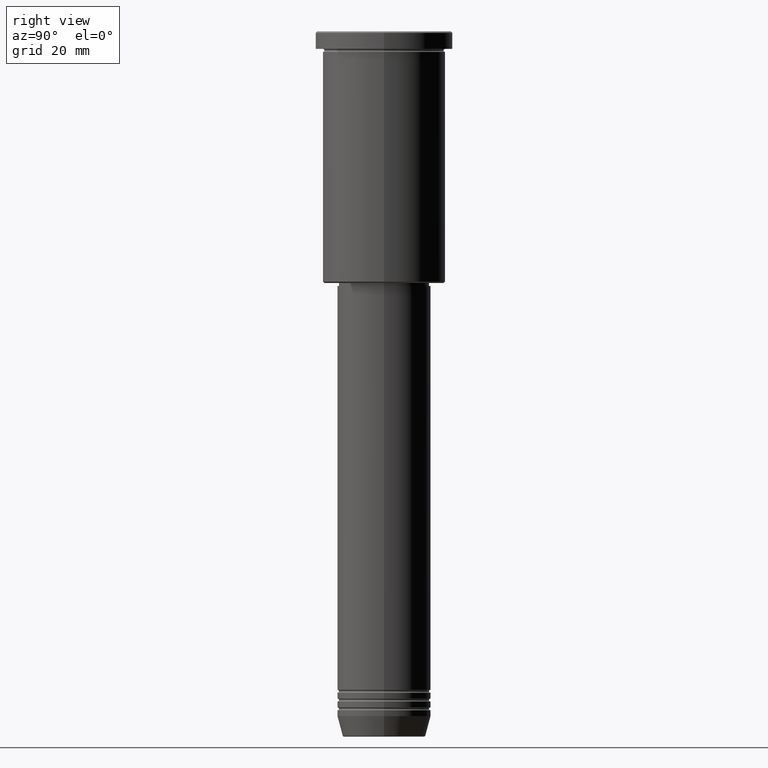
[diagram: clean part render]
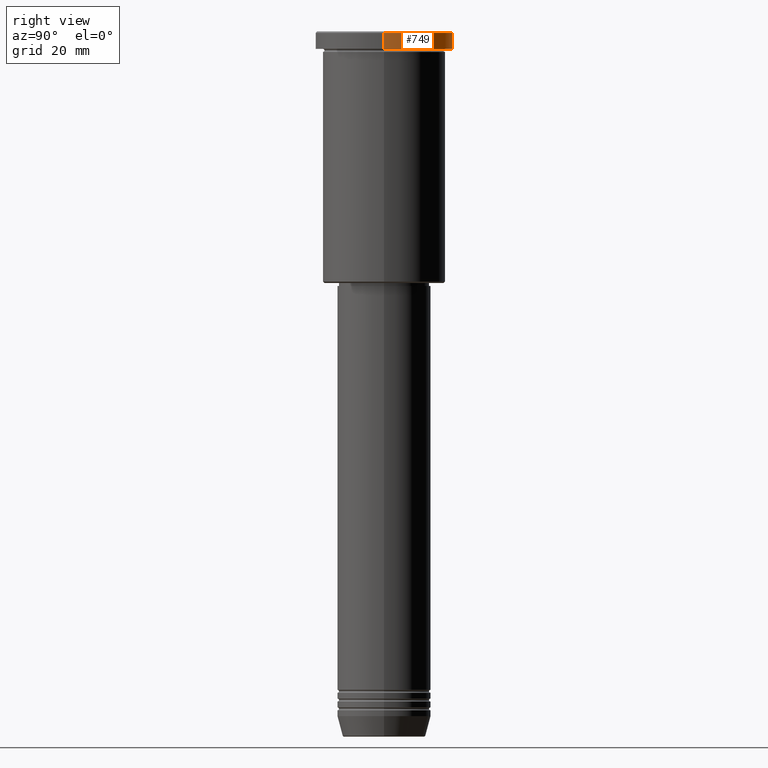
[diagram: same view with one face highlighted and labeled with its STEP entity id]
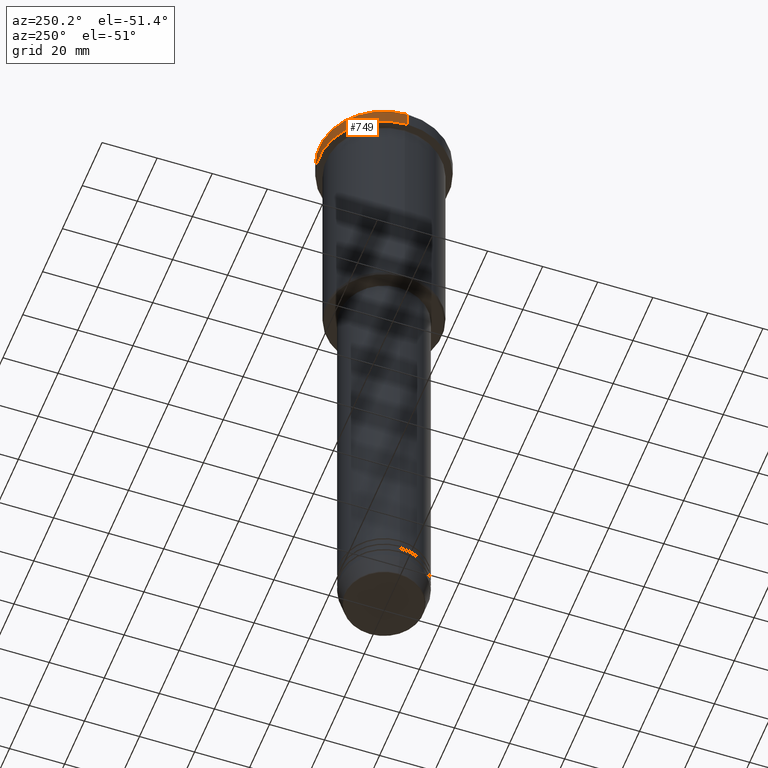
[diagram: same view with one face highlighted and labeled with its STEP entity id]
A machine part, right view. The second image highlights one B-rep face of the part: STEP entity #749.
A second angle (auxiliary view) of the same face is appended — the face is thin or edge-on in the first view.
In plain terms, the highlighted cylindrical surface (partial cylindrical patch) has radius 23.5 mm, axis along (-0, -0, 1).
Its self-contained STEP definition (entity closure, byte-faithful):
#79 = AXIS2_PLACEMENT_3D ( 'NONE', #821, #360, #817 ) ;
#81 = VERTEX_POINT ( 'NONE', #696 ) ;
#87 = EDGE_CURVE ( 'NONE', #1023, #550, #530, .T. ) ;
#91 = DIRECTION ( 'NONE',  ( 0.000000000000000000, 0.000000000000000000, -1.000000000000000000 ) ) ;
#93 = EDGE_CURVE ( 'NONE', #661, #81, #1053, .T. ) ;
#108 = ORIENTED_EDGE ( 'NONE', *, *, #87, .T. ) ;
#135 = CARTESIAN_POINT ( 'NONE',  ( -23.50000000000000000, 2.877919977996280320E-15, -5.999999999999994671 ) ) ;
#160 = DIRECTION ( 'NONE',  ( -0.000000000000000000, -0.000000000000000000, 1.000000000000000000 ) ) ;
#176 = DIRECTION ( 'NONE',  ( 1.000000000000000000, 0.000000000000000000, 0.000000000000000000 ) ) ;
#198 = ORIENTED_EDGE ( 'NONE', *, *, #93, .F. ) ;
#200 = EDGE_LOOP ( 'NONE', ( #389, #108, #940, #198 ) ) ;
#249 = VECTOR ( 'NONE', #690, 1000.000000000000000 ) ;
#251 = DIRECTION ( 'NONE',  ( 1.000000000000000000, 0.000000000000000000, 0.000000000000000000 ) ) ;
#260 = CARTESIAN_POINT ( 'NONE',  ( 0.000000000000000000, 0.000000000000000000, -0.5000000000000281997 ) ) ;
#360 = DIRECTION ( 'NONE',  ( -0.000000000000000000, -0.000000000000000000, 1.000000000000000000 ) ) ;
#389 = ORIENTED_EDGE ( 'NONE', *, *, #892, .T. ) ;
#467 = EDGE_CURVE ( 'NONE', #550, #81, #797, .T. ) ;
#530 = LINE ( 'NONE', #888, #249 ) ;
#533 = VECTOR ( 'NONE', #542, 1000.000000000000000 ) ;
#542 = DIRECTION ( 'NONE',  ( -0.000000000000000000, -0.000000000000000000, 1.000000000000000000 ) ) ;
#550 = VERTEX_POINT ( 'NONE', #1009 ) ;
#599 = CIRCLE ( 'NONE', #79, 23.50000000000000000 ) ;
#661 = VERTEX_POINT ( 'NONE', #844 ) ;
#690 = DIRECTION ( 'NONE',  ( -0.000000000000000000, -0.000000000000000000, 1.000000000000000000 ) ) ;
#696 = CARTESIAN_POINT ( 'NONE',  ( 23.50000000000000000, 0.000000000000000000, -0.5000000000000281997 ) ) ;
#749 = ADVANCED_FACE ( 'NONE', ( #883 ), #954, .T. ) ;
#797 = CIRCLE ( 'NONE', #1176, 23.50000000000000000 ) ;
#817 = DIRECTION ( 'NONE',  ( 1.000000000000000000, 0.000000000000000000, 0.000000000000000000 ) ) ;
#821 = CARTESIAN_POINT ( 'NONE',  ( 0.000000000000000000, 0.000000000000000000, -5.999999999999994671 ) ) ;
#844 = CARTESIAN_POINT ( 'NONE',  ( 23.50000000000000000, 0.000000000000000000, -5.999999999999994671 ) ) ;
#883 = FACE_OUTER_BOUND ( 'NONE', #200, .T. ) ;
#888 = CARTESIAN_POINT ( 'NONE',  ( -23.50000000000000000, 2.877919977996280320E-15, 0.000000000000000000 ) ) ;
#892 = EDGE_CURVE ( 'NONE', #661, #1023, #599, .T. ) ;
#940 = ORIENTED_EDGE ( 'NONE', *, *, #467, .T. ) ;
#954 = CYLINDRICAL_SURFACE ( 'NONE', #970, 23.50000000000000000 ) ;
#961 = CARTESIAN_POINT ( 'NONE',  ( 0.000000000000000000, 0.000000000000000000, 0.000000000000000000 ) ) ;
#970 = AXIS2_PLACEMENT_3D ( 'NONE', #961, #160, #251 ) ;
#1009 = CARTESIAN_POINT ( 'NONE',  ( -23.50000000000000000, 2.877919977996280320E-15, -0.5000000000000281997 ) ) ;
#1023 = VERTEX_POINT ( 'NONE', #135 ) ;
#1053 = LINE ( 'NONE', #1077, #533 ) ;
#1077 = CARTESIAN_POINT ( 'NONE',  ( 23.50000000000000000, 0.000000000000000000, 0.000000000000000000 ) ) ;
#1176 = AXIS2_PLACEMENT_3D ( 'NONE', #260, #91, #176 ) ;